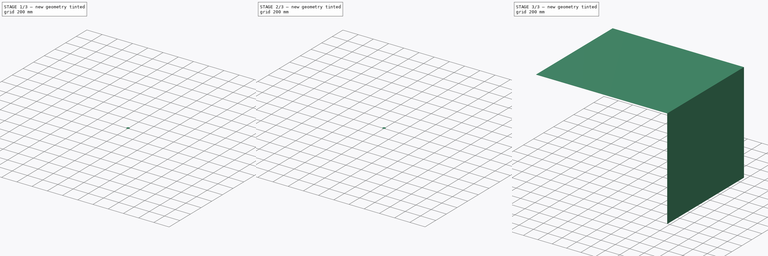
[diagram: build sequence overview — one tinted view per stage of 3, left to right]
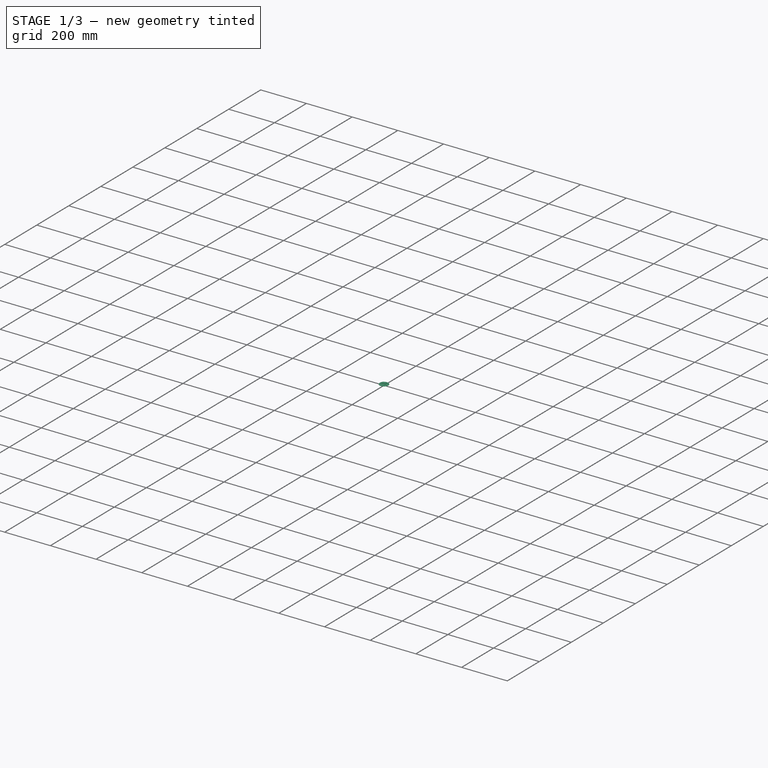
[diagram: stage 1 of 3 — iso view after this stage's code; geometry added in this stage tinted green]
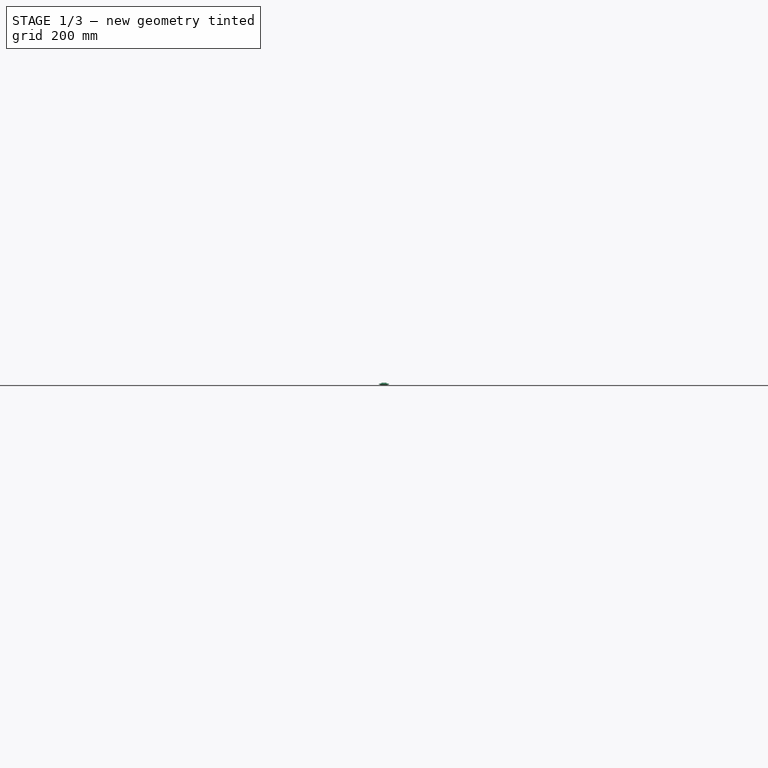
[diagram: stage 1 of 3 — front view after this stage's code; geometry added in this stage tinted green]
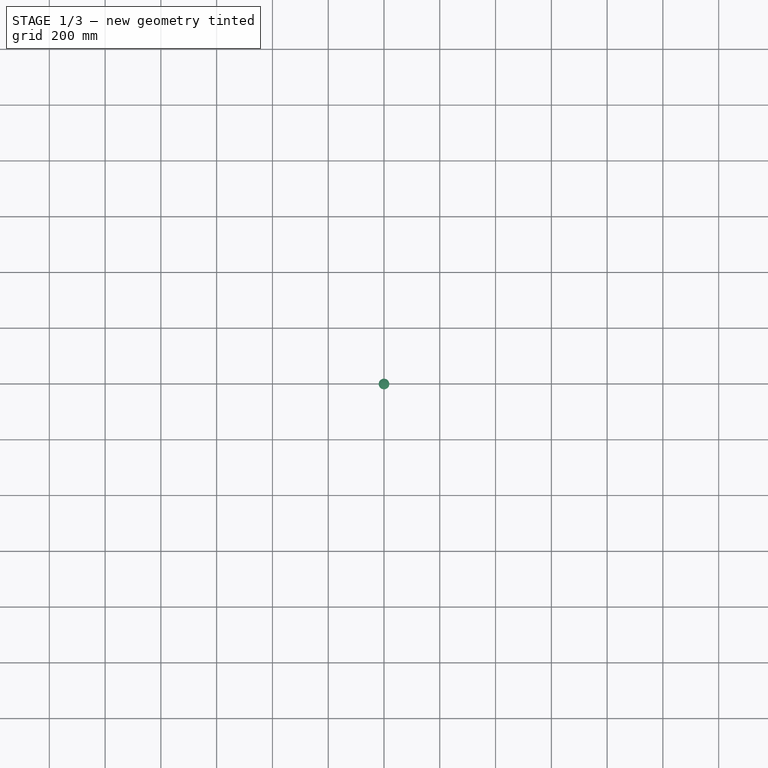
[diagram: stage 1 of 3 — top view after this stage's code; geometry added in this stage tinted green]
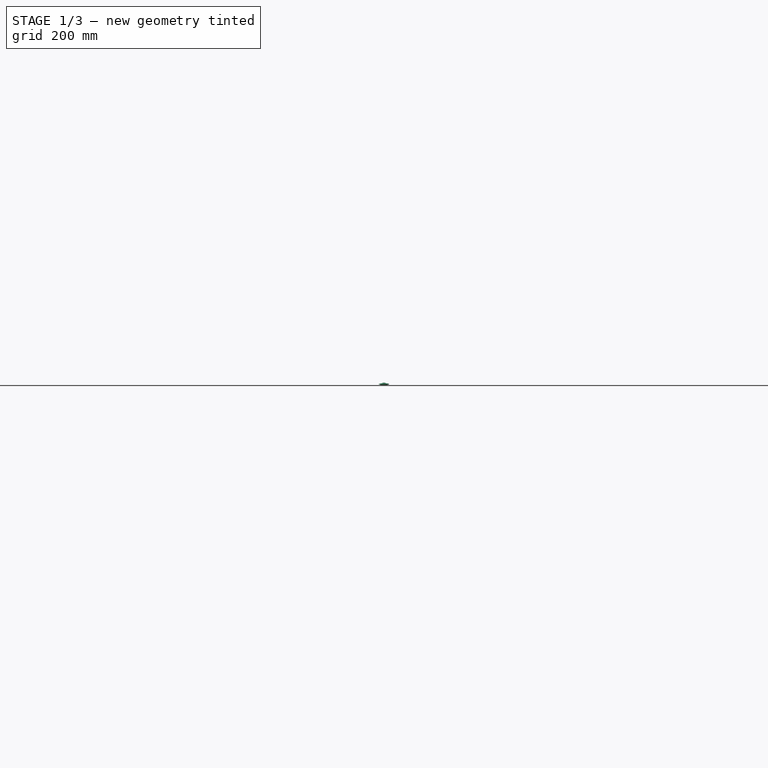
[diagram: stage 1 of 3 — right view after this stage's code; geometry added in this stage tinted green]
FCSTD DOCUMENT  (FreeCAD 1.0R39109 (Git))
Label: ClockRaytrace
License: All rights reserved
LicenseURL: https://en.wikipedia.org/wiki/All_rights_reserved
objects: Part::FeaturePython×11, Sketcher::SketchObject×5, PartDesign::Body×4, PartDesign::Pad×4, App::Link×2, App::DocumentObjectGroup×2, PartDesign::Revolution×1, PartDesign::ShapeBinder×1, Spreadsheet::Sheet×1, App::Part×1
note: 41 computed .brp shape members not serialized (recipe doc carries the construction recipe); baked Part::Feature solids carry a one-line shape summary decoded from their .brp

FEATURE [Sketcher::SketchObject] Sketch001
  ArcFitTolerance = 1e-06
  AttachmentSupport = -> [XZ_Plane003]
  FullyConstrained = true
  MakeInternals = false
  MapMode = 5
  Placement = pos=(0,0,0) rot=(1,0,0;1.5708rad)
  sketch-geometry (7):
    g0: LineSegment StartX=0 StartY=3.99545 StartZ=0 EndX=0 EndY=-3.99545 EndZ=0
    g1: LineSegment [constr] StartX=0 StartY=0 StartZ=0 EndX=19 EndY=0 EndZ=0
    g2: LineSegment StartX=19 StartY=0.4 StartZ=0 EndX=19 EndY=-0.4 EndZ=0
    g3: Circle [constr] CenterX=0 CenterY=-48.0045 CenterZ=0 NormalX=0 NormalY=0 NormalZ=1 AngleXU=0 Radius=52
    g4: ArcOfCircle CenterX=1.31e-14 CenterY=-48.0045 CenterZ=0 NormalX=0 NormalY=0 NormalZ=1 AngleXU=0 Radius=52 StartAngle=1.19675 EndAngle=1.5708
    g5: Circle [constr] CenterX=0 CenterY=48.0045 CenterZ=0 NormalX=0 NormalY=0 NormalZ=1 AngleXU=0 Radius=52
    g6: ArcOfCircle CenterX=4.1e-15 CenterY=48.0045 CenterZ=0 NormalX=0 NormalY=0 NormalZ=1 AngleXU=0 Radius=52 StartAngle=4.71239 EndAngle=5.08643
  constraints (21):
    c: Vertical(g0)
    c: Symmetric(g0,g0,g-1)
    c: Coincident(g1,g-1)
    c: PointOnObject(g1,g-1)
    c: DistanceX(g1,g1) = 19
    c: Vertical(g2)
    c: Symmetric(g2,g2,g1)
    c: Radius(g3) = 52
    c: Vertical(g3,g0)
    c: PointOnObject(g2,g3)
    c: PointOnObject(g0,g3)
    c: Coincident(g4,g0)
    c: Coincident(g4,g2)
    c: Vertical(g5,g0)
    c: Equal(g5,g3)
    c: PointOnObject(g2,g5)
    c: Coincident(g6,g2)
    c: Coincident(g6,g0)
    c: Equal(g4,g3)
    c: Equal(g5,g6)
    c: DistanceY(g2,g2) = 0.8
FEATURE [PartDesign::Revolution] Revolution001
  Angle = 360
  Angle2 = 60
  Axis = (0,2e-16,1)
  Base = (0,0,0)
  Placement = pos=(0,0,0) rot=(1,0,0;1.5708rad)
  Profile = -> Sketch001
  ReferenceAxis = -> Sketch001 [V_Axis]
  Refine = true
  Reversed = true
  Suppressed = false
  Type = 0
FEATURE [PartDesign::Body] Body001  label="38mm50FLLens"
  AllowCompound = false
  Group = -> [Sketch001,Revolution001]
  Origin = -> Origin003
  Tip = -> Revolution001
FEATURE [Part::FeaturePython] Beam  # WARN: FeaturePython — macro-defined, semantics opaque (R4)
  BeamDistance = 0.1
  BeamNrColumns = 10
  BeamNrRows = 10
  ConeAngle = 90
  HideFirstPart = false
  MaxNrReflections = 200
  MaxRayLength = 1000000
  Order = 0
  Placement = pos=(1.855,-7.73,0) rot=(-1,0,0;0.05236rad)
  Power = true
  Spherical = true
  Wavelength = 580
  expr: .Placement.Base.x = Spreadsheet.Base_LED_Height / 2 + Spreadsheet.Base_LED_X_offset
  expr: .Placement.Base.y = -Spreadsheet.Base_LED_Width / 2
  expr: BeamNrColumns = Spreadsheet.Base_Source_Columns
  expr: BeamNrRows = Spreadsheet.Base_Source_Rows
  expr: ConeAngle = Spreadsheet.Base_SourceConeAngle
FEATURE [Part::FeaturePython] Beam001  # WARN: FeaturePython — macro-defined, semantics opaque (R4)
  BeamDistance = 0.1
  BeamNrColumns = 10
  BeamNrRows = 10
  ConeAngle = 90
  HideFirstPart = false
  MaxNrReflections = 200
  MaxRayLength = 1000000
  Order = 0
  Placement = pos=(-1.855,0,0) rot=(0,1,0;0rad)
  Power = true
  Spherical = true
  Wavelength = 580
  expr: .Placement.Base.x = -Spreadsheet.Base_LED_Height / 2 + Spreadsheet.Base_LED_X_offset
  expr: BeamNrColumns = Spreadsheet.Base_Source_Columns
  expr: BeamNrRows = Spreadsheet.Base_Source_Rows
  expr: ConeAngle = Spreadsheet.Base_SourceConeAngle
FEATURE [Part::FeaturePython] Beam002  # WARN: FeaturePython — macro-defined, semantics opaque (R4)
  BeamDistance = 1
  BeamNrColumns = 40
  BeamNrRows = 1
  ConeAngle = 360
  HideFirstPart = false
  MaxNrReflections = 200
  MaxRayLength = 1000000
  Order = 0
  Placement = pos=(20,0,0) rot=(0.57735,-0.57735,0.57735;2.0944rad)
  Power = true
  Spherical = false
  Wavelength = 580
FEATURE [Part::FeaturePython] Beam003  # WARN: FeaturePython — macro-defined, semantics opaque (R4)
  BeamDistance = 0.1
  BeamNrColumns = 10
  BeamNrRows = 10
  ConeAngle = 90
  HideFirstPart = false
  MaxNrReflections = 200
  MaxRayLength = 1000000
  Order = 0
  Placement = pos=(1.855,7.73,0) rot=(1,0,0;0.069813rad)
  Power = true
  Spherical = true
  Wavelength = 580
  expr: .Placement.Base.x = Spreadsheet.Base_LED_Height / 2 + Spreadsheet.Base_LED_X_offset
  expr: .Placement.Base.y = Spreadsheet.Base_LED_Width / 2
  expr: BeamNrColumns = Spreadsheet.Base_Source_Columns
  expr: BeamNrRows = Spreadsheet.Base_Source_Rows
  expr: ConeAngle = Spreadsheet.Base_SourceConeAngle
FEATURE [PartDesign::ShapeBinder] CopyPad004
  TraceSupport = false
FEATURE [Sketcher::SketchObject] Sketch
  ArcFitTolerance = 1e-06
  AttachmentSupport = -> [CopyPad004]
  FullyConstrained = true
  MakeInternals = false
  MapMode = 5
  Placement = pos=(0,0,0) rot=(1,0,0;3.14159rad)
  sketch-geometry (5):
    g0: LineSegment StartX=8.89 StartY=-5.08 StartZ=0 EndX=8.89 EndY=5.08 EndZ=0
    g1: LineSegment StartX=8.89 StartY=5.08 StartZ=0 EndX=-8.89 EndY=5.08 EndZ=0
    g2: LineSegment StartX=-8.89 StartY=5.08 StartZ=0 EndX=-8.89 EndY=-5.08 EndZ=0
    g3: LineSegment StartX=-8.89 StartY=-5.08 StartZ=0 EndX=8.89 EndY=-5.08 EndZ=0
    g4: GeomPoint [constr] X=0 Y=0 Z=0
  constraints (12):
    c: Coincident(g0,g1)
    c: Coincident(g1,g2)
    c: Coincident(g2,g3)
    c: Coincident(g3,g0)
    c: Vertical(g0)
    c: Vertical(g2)
    c: Horizontal(g1)
    c: Horizontal(g3)
    c: Symmetric(g2,g0,g4)
    c: Coincident(g4,g-1)
    c: DistanceY(g0,g0) = 10.16
    c: DistanceX(g1,g1) = 17.78
FEATURE [PartDesign::Pad] Pad
  Direction = (0,0,-1)
  Length = 5.08
  Length2 = 10
  Profile = -> Sketch
  ReferenceAxis = -> Sketch [N_Axis]
  Refine = true
  Reversed = true
  Suppressed = false
  Type = 0
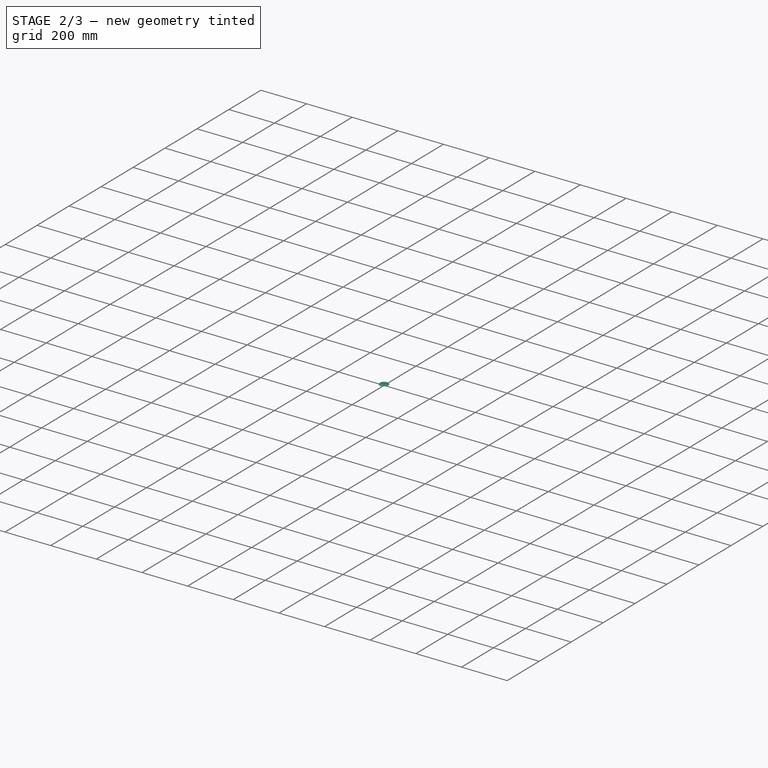
[diagram: stage 2 of 3 — iso view after this stage's code; geometry added in this stage tinted green]
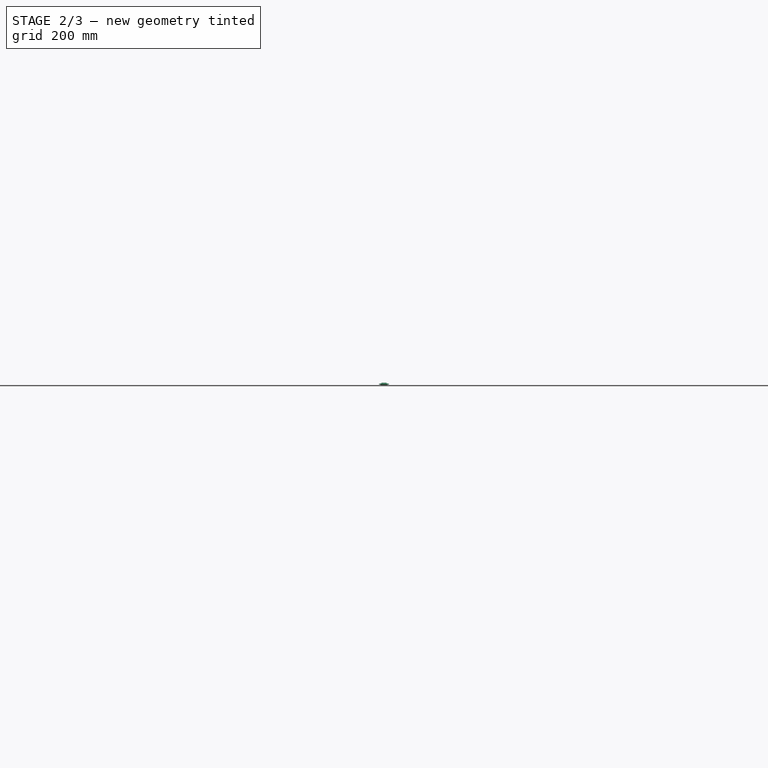
[diagram: stage 2 of 3 — front view after this stage's code; geometry added in this stage tinted green]
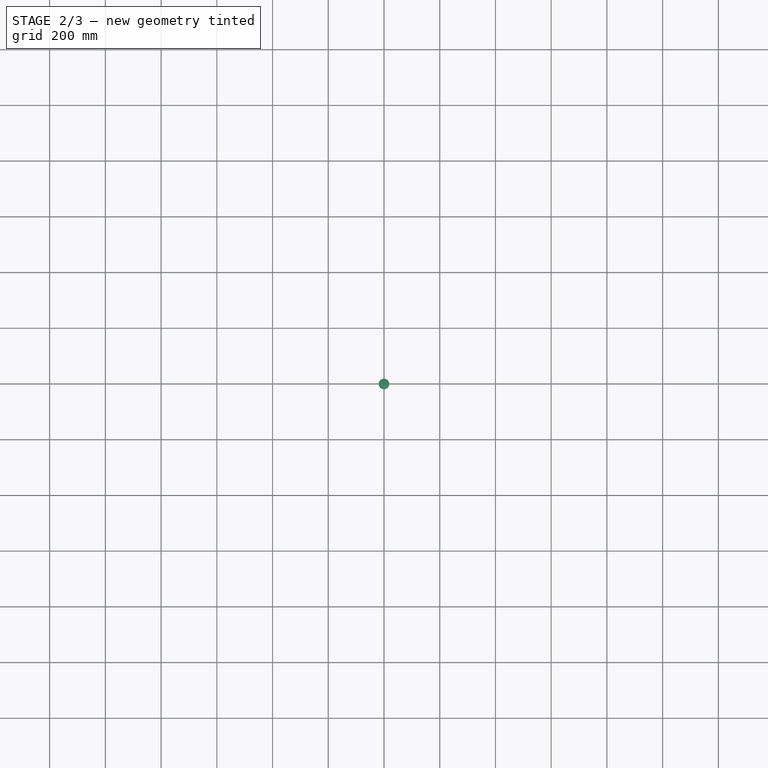
[diagram: stage 2 of 3 — top view after this stage's code; geometry added in this stage tinted green]
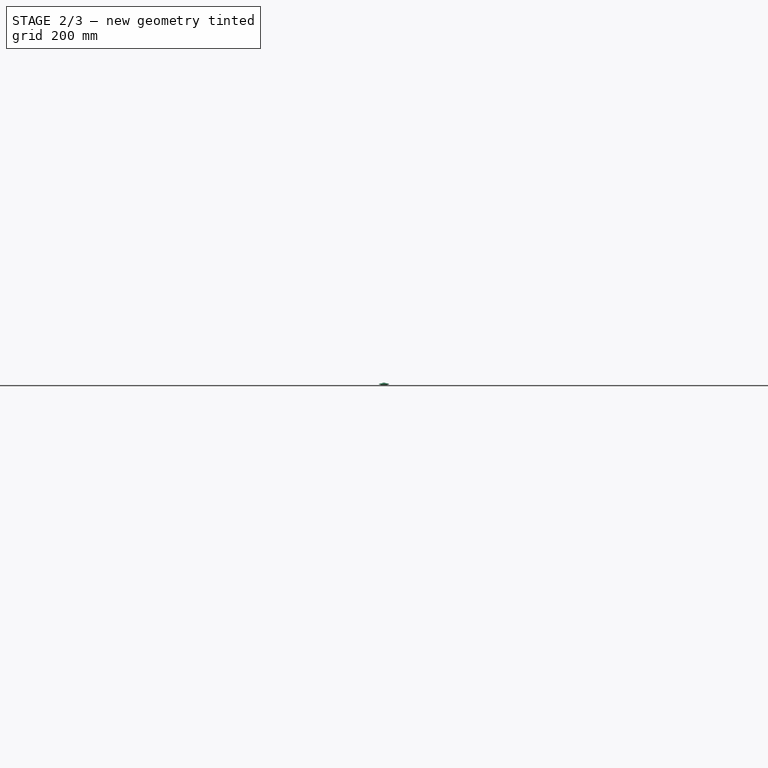
[diagram: stage 2 of 3 — right view after this stage's code; geometry added in this stage tinted green]
FEATURE [PartDesign::Body] Body011  label="Wall and Ceiling"
  AllowCompound = false
  Group = -> [Sketch012,Pad007]
  Origin = -> Origin020
  Tip = -> Pad007
  expr: .Placement.Rotation.Pitch = Spreadsheet.Base_DeviceTilt
FEATURE [Part::FeaturePython] Absorber  # WARN: FeaturePython — macro-defined, semantics opaque (R4)
  Base = -> [Body011]
  OpticalType = 1
  Transparency = 0
  collectStatistics = false
FEATURE [Sketcher::SketchObject] Sketch013
  ArcFitTolerance = 1e-06
  AttachmentSupport = -> [CopyPad004]
  FullyConstrained = true
  MakeInternals = false
  MapMode = 5
  Placement = pos=(0,0,0) rot=(1,0,0;3.14159rad)
  sketch-geometry (9):
    g0: LineSegment [constr] StartX=6.35 StartY=-3.81 StartZ=0 EndX=6.35 EndY=3.81 EndZ=0
    g1: LineSegment [constr] StartX=6.35 StartY=3.81 StartZ=0 EndX=-6.35 EndY=3.81 EndZ=0
    g2: LineSegment [constr] StartX=-6.35 StartY=3.81 StartZ=0 EndX=-6.35 EndY=-3.81 EndZ=0
    g3: LineSegment [constr] StartX=-6.35 StartY=-3.81 StartZ=0 EndX=6.35 EndY=-3.81 EndZ=0
    g4: GeomPoint [constr] X=0 Y=0 Z=0
    g5: Circle CenterX=-6.35 CenterY=-3.81 CenterZ=0 NormalX=0 NormalY=0 NormalZ=1 AngleXU=0 Radius=0.3175
    g6: Circle CenterX=6.35 CenterY=-3.81 CenterZ=0 NormalX=0 NormalY=0 NormalZ=1 AngleXU=0 Radius=0.3175
    g7: Circle CenterX=6.35 CenterY=3.81 CenterZ=0 NormalX=0 NormalY=0 NormalZ=1 AngleXU=0 Radius=0.3175
    g8: Circle CenterX=-6.35 CenterY=3.81 CenterZ=0 NormalX=0 NormalY=0 NormalZ=1 AngleXU=0 Radius=0.3175
  constraints (20):
    c: Coincident(g0,g1)
    c: Coincident(g1,g2)
    c: Coincident(g2,g3)
    c: Coincident(g3,g0)
    c: Vertical(g0)
    c: Vertical(g2)
    c: Horizontal(g1)
    c: Horizontal(g3)
    c: Symmetric(g2,g0,g4)
    c: Coincident(g4,g-1)
    c: DistanceX(g1,g1) = 12.7
    c: DistanceY(g2,g2) = 7.62
    c: Coincident(g5,g2)
    c: Coincident(g6,g0)
    c: Coincident(g7,g0)
    c: Coincident(g8,g1)
    c: Equal(g5,g8)
    c: Equal(g7,g8)
    c: Equal(g6,g8)
    c: Diameter(g8) = 0.635
FEATURE [PartDesign::Pad] Pad008
  BaseFeature = -> Pad
  Direction = (0,0,-1)
  Length = 4.318
  Length2 = 10
  Profile = -> Sketch013
  ReferenceAxis = -> Sketch013 [N_Axis]
  Refine = true
  Suppressed = false
  Type = 0
FEATURE [PartDesign::Body] Body
  AllowCompound = false
  Group = -> [CopyPad004,Sketch,Pad,Sketch013,Pad008]
  Origin = -> Origin
  Tip = -> Pad008
FEATURE [App::Part] Part006  label="LED"
  Group = -> [Body]
  Origin = -> Origin013
  Placement = pos=(0,0,-5.08) rot=(0,0,1;1.5708rad)
  expr: .Placement.Base.x = Spreadsheet.Base_LED_X_offset
  expr: .Placement.Base.z = -Spreadsheet.Base_LED_Package_Height
  expr: .Placement.Rotation.Yaw = Spreadsheet.Base_LED_yaw_angle
FEATURE [App::Link] Link  label="LED001"
  LinkPlacement = pos=(10.16,0,-5.08) rot=(0,0,1;1.5708rad)
  LinkedObject = -> Part006
  Placement = pos=(10.16,0,-5.08) rot=(0,0,1;1.5708rad)
  expr: .Placement.Base.x = Spreadsheet.Base_LED_X_offset + 400 thou
FEATURE [Part::FeaturePython] Beam007  # WARN: FeaturePython — macro-defined, semantics opaque (R4)
  BeamDistance = 0.1
  BeamNrColumns = 10
  BeamNrRows = 10
  ConeAngle = 90
  HideFirstPart = false
  MaxNrReflections = 200
  MaxRayLength = 1000000
  Order = 0
  Placement = pos=(12.015,-7.62,0) rot=(0,0,1;0rad)
  Power = true
  Spherical = true
  Wavelength = 580
  expr: .Placement.Base.x = Spreadsheet.Base_LED_Height / 2 + Spreadsheet.Base_LED_X_offset + 400 thou
  expr: BeamNrColumns = Spreadsheet.Base_Source_Columns
  expr: BeamNrRows = Spreadsheet.Base_Source_Rows
  expr: ConeAngle = Spreadsheet.Base_SourceConeAngle
FEATURE [App::DocumentObjectGroup] Group001  label="LED2"
  Group = -> [Beam007]
FEATURE [App::DocumentObjectGroup] Group  label="sources"
  Group = -> [Beam,Beam001,Beam003,Beam004,Beam005,Beam006,Group001]
FEATURE [App::Link] Link001  label="38mm50FLLens001"
  LinkPlacement = pos=(-10,0,51) rot=(0,0,1;0rad)
  LinkedObject = -> Body001
  Placement = pos=(-10,0,51) rot=(0,0,1;0rad)
  expr: .Placement.Base.x = -Spreadsheet.Base_Lens_X_offset
  expr: .Placement.Base.z = Spreadsheet.Base_LensToLED
FEATURE [Part::FeaturePython] Lens  # WARN: FeaturePython — macro-defined, semantics opaque (R4)
  Base = -> [Link001]
  Material = 3
  OpticalType = 0
  RefractionIndex = 1.45873
  Sellmeier = [0.696166,0.407943,0.897479,4679.15,13512.1,97934000]
  Transparency = 100
  collectStatistics = false
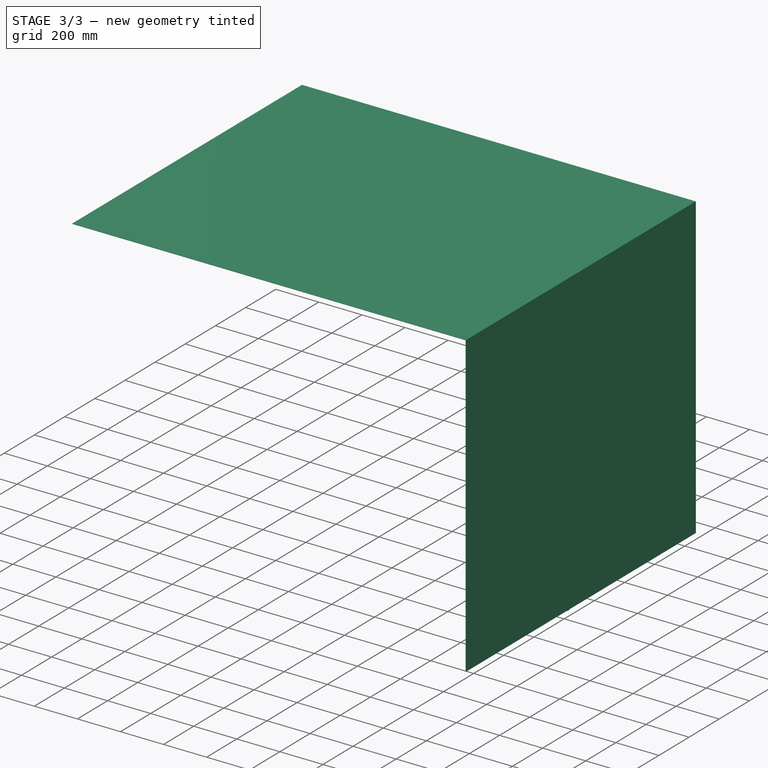
[diagram: stage 3 of 3 — iso view after this stage's code; geometry added in this stage tinted green]
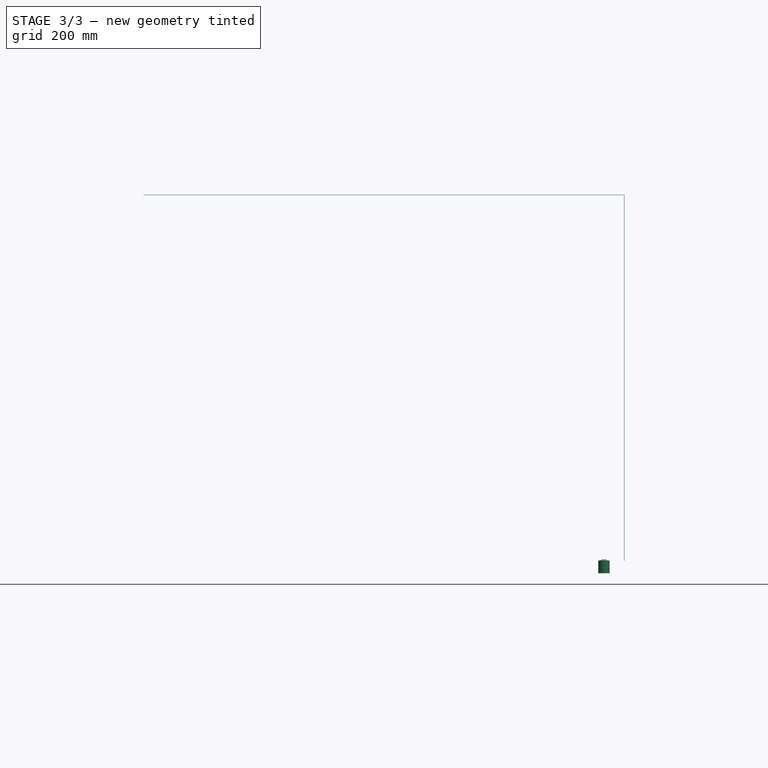
[diagram: stage 3 of 3 — front view after this stage's code; geometry added in this stage tinted green]
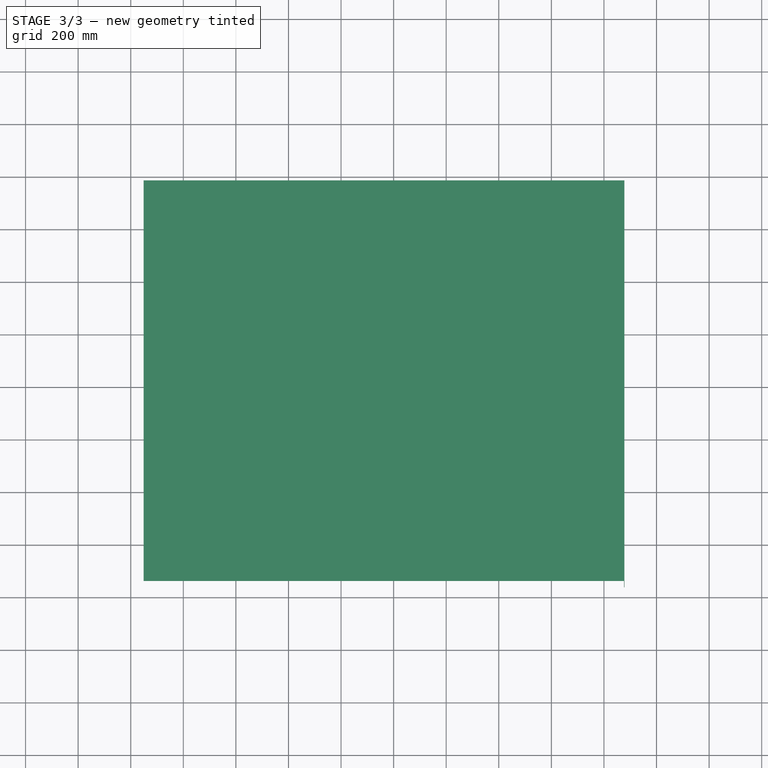
[diagram: stage 3 of 3 — top view after this stage's code; geometry added in this stage tinted green]
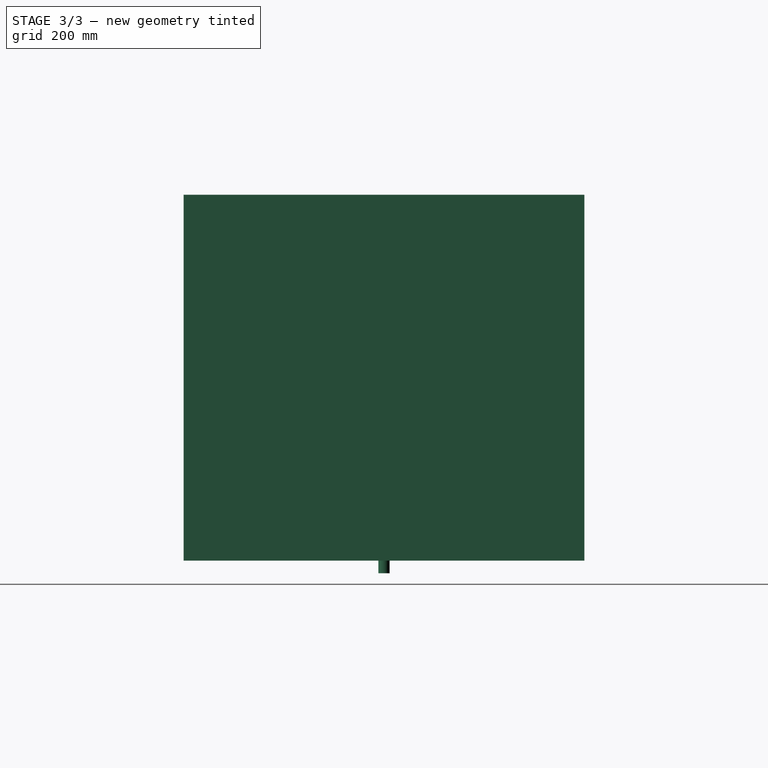
[diagram: stage 3 of 3 — right view after this stage's code; geometry added in this stage tinted green]
FEATURE [Sketcher::SketchObject] Sketch011
  ArcFitTolerance = 1e-06
  AttachmentSupport = -> [XY_Plane019]
  FullyConstrained = false
  MakeInternals = false
  MapMode = 5
  sketch-geometry (3):
    g0: Circle CenterX=0 CenterY=0 CenterZ=0 NormalX=0 NormalY=0 NormalZ=1 AngleXU=0 Radius=20
    g1: Circle CenterX=0 CenterY=0 CenterZ=0 NormalX=0 NormalY=0 NormalZ=1 AngleXU=0 Radius=21.5748
    g2: LineSegment [constr] StartX=0.010426 StartY=20 StartZ=0 EndX=0.010426 EndY=21.5748 EndZ=0
  constraints (7):
    c: Coincident(g0,g-1)
    c: Coincident(g1,g0)
    c: Diameter(g0) = 40
    c: PointOnObject(g2,g0)
    c: PointOnObject(g2,g1)
    c: Vertical(g2)
    c: DistanceY(g2,g2) = 1.5748
FEATURE [PartDesign::Pad] Pad006
  Direction = (0,0,1)
  Length = 48
  Length2 = 10
  Profile = -> Sketch011
  ReferenceAxis = -> Sketch011 [N_Axis]
  Refine = true
  Reversed = true
  Suppressed = false
  Type = 0
  expr: Length = Spreadsheet.Base_LensToLED - 3 mm
FEATURE [PartDesign::Body] Body010  label="baffle"
  AllowCompound = false
  Group = -> [Sketch011,Pad006]
  Origin = -> Origin019
  Placement = pos=(-7.46,0,48) rot=(0,-1,0;0.314159rad)
  Tip = -> Pad006
  expr: .Placement.Base.x = 2.54 mm - Spreadsheet.Base_Lens_X_offset
  expr: .Placement.Base.z = Spreadsheet.Base_LensToLED - 3 mm
FEATURE [Part::FeaturePython] Absorber001  # WARN: FeaturePython — macro-defined, semantics opaque (R4)
  Base = -> [Body010]
  OpticalType = 1
  Transparency = 0
  collectStatistics = false
FEATURE [Spreadsheet::Sheet] Spreadsheet
  Base_Ceiling_Target_Height = 101.6
  Base_Ceiling_Target_Width = 254
  Base_DeviceTilt = 0
  Base_LED_Height = 3.71
  Base_LED_Package_Height = 5.08
  Base_LED_Width = 15.46
  Base_LED_X_offset = 0
  Base_LED_Y_offset = 0
  Base_LED_yaw_angle = 90
  Base_LEDtoCeiling = 1397
  Base_LensToLED = 51
  Base_Lens_X_offset = 10
  Base_SourceConeAngle = 90
  Base_Source_Columns = 10
  Base_Source_Rows = 10
  Base_XOffset_LED_to_Ceiling = -248.158
FEATURE [Part::FeaturePython] Beam004  # WARN: FeaturePython — macro-defined, semantics opaque (R4)
  BeamDistance = 0.1
  BeamNrColumns = 10
  BeamNrRows = 10
  ConeAngle = 90
  HideFirstPart = false
  MaxNrReflections = 200
  MaxRayLength = 1000000
  Order = 0
  Placement = pos=(-1.855,-7.73,0) rot=(-1,0,0;0.05236rad)
  Power = true
  Spherical = true
  Wavelength = 580
  expr: .Placement.Base.x = -Spreadsheet.Base_LED_Height / 2 + Spreadsheet.Base_LED_X_offset
  expr: .Placement.Base.y = -Spreadsheet.Base_LED_Width / 2
  expr: BeamNrColumns = Spreadsheet.Base_Source_Columns
  expr: BeamNrRows = Spreadsheet.Base_Source_Rows
  expr: ConeAngle = Spreadsheet.Base_SourceConeAngle
FEATURE [Part::FeaturePython] Beam005  # WARN: FeaturePython — macro-defined, semantics opaque (R4)
  BeamDistance = 0.1
  BeamNrColumns = 10
  BeamNrRows = 10
  ConeAngle = 90
  HideFirstPart = false
  MaxNrReflections = 200
  MaxRayLength = 1000000
  Order = 0
  Placement = pos=(1.855,0,0) rot=(-1,0,0;0.05236rad)
  Power = true
  Spherical = true
  Wavelength = 580
  expr: .Placement.Base.x = Spreadsheet.Base_LED_Height / 2 + <<Spreadsheet>>.Base_LED_X_offset
  expr: .Placement.Base.y = 0 in
  expr: BeamNrColumns = Spreadsheet.Base_Source_Columns
  expr: BeamNrRows = Spreadsheet.Base_Source_Rows
  expr: ConeAngle = Spreadsheet.Base_SourceConeAngle
FEATURE [Part::FeaturePython] Beam006  # WARN: FeaturePython — macro-defined, semantics opaque (R4)
  BeamDistance = 0.1
  BeamNrColumns = 10
  BeamNrRows = 10
  ConeAngle = 90
  HideFirstPart = false
  MaxNrReflections = 200
  MaxRayLength = 1000000
  Order = 0
  Placement = pos=(-1.855,7.73,0) rot=(1,0,0;0.069813rad)
  Power = true
  Spherical = true
  Wavelength = 580
  expr: .Placement.Base.x = -Spreadsheet.Base_LED_Height / 2 + Spreadsheet.Base_LED_X_offset
  expr: .Placement.Base.y = Spreadsheet.Base_LED_Width / 2
  expr: BeamNrColumns = Spreadsheet.Base_Source_Columns
  expr: BeamNrRows = Spreadsheet.Base_Source_Rows
  expr: ConeAngle = Spreadsheet.Base_SourceConeAngle
FEATURE [Sketcher::SketchObject] Sketch012
  ArcFitTolerance = 1e-06
  AttachmentSupport = -> [XZ_Plane022]
  FullyConstrained = true
  MakeInternals = false
  MapMode = 5
  Placement = pos=(0,0,0) rot=(0,0.707107,0.707107;3.14159rad)
  sketch-geometry (6):
    g0: LineSegment StartX=-76.2 StartY=0 StartZ=0 EndX=-76.2 EndY=1390.42 EndZ=0
    g1: LineSegment StartX=-76.2 StartY=1390.42 StartZ=0 EndX=1751.03 EndY=1390.42 EndZ=0
    g2: LineSegment StartX=1751.03 StartY=1390.42 StartZ=0 EndX=1751.03 EndY=1391.99 EndZ=0
    g3: LineSegment StartX=1751.03 StartY=1391.99 StartZ=0 EndX=-77.7748 EndY=1391.99 EndZ=0
    g4: LineSegment StartX=-77.7748 StartY=1391.99 StartZ=0 EndX=-77.7748 EndY=0 EndZ=0
    g5: LineSegment StartX=-77.7748 StartY=0 StartZ=0 EndX=-76.2 EndY=0 EndZ=0
  constraints (18):
    c: Vertical(g0)
    c: Horizontal(g1)
    c: Coincident(g2,g1)
    c: Vertical(g2)
    c: Horizontal(g3)
    c: PointOnObject(g4,g-1)
    c: Vertical(g4)
    c: Coincident(g5,g0)
    c: DistanceY(g2,g2) = 1.5748
    c: Equal(g5,g2)
    c: Coincident(g3,g2)
    c: Coincident(g3,g4)
    c: Coincident(g1,g0)
    c: Coincident(g5,g4)
    c: DistanceX(g0,g-1) = 76.2
    c: DistanceY(g4,g4) = 1391.99
    c: DistanceX(g3,g3) = 1828.8
    c: Horizontal(g0,g-1)
FEATURE [PartDesign::Pad] Pad007
  Direction = (0,1,-2e-16)
  Length = 1524
  Length2 = 10
  Midplane = true
  Placement = pos=(0,0,0) rot=(1,0,0;1.5708rad)
  Profile = -> Sketch012
  ReferenceAxis = -> Sketch012 [N_Axis]
  Refine = true
  Suppressed = false
  Type = 0
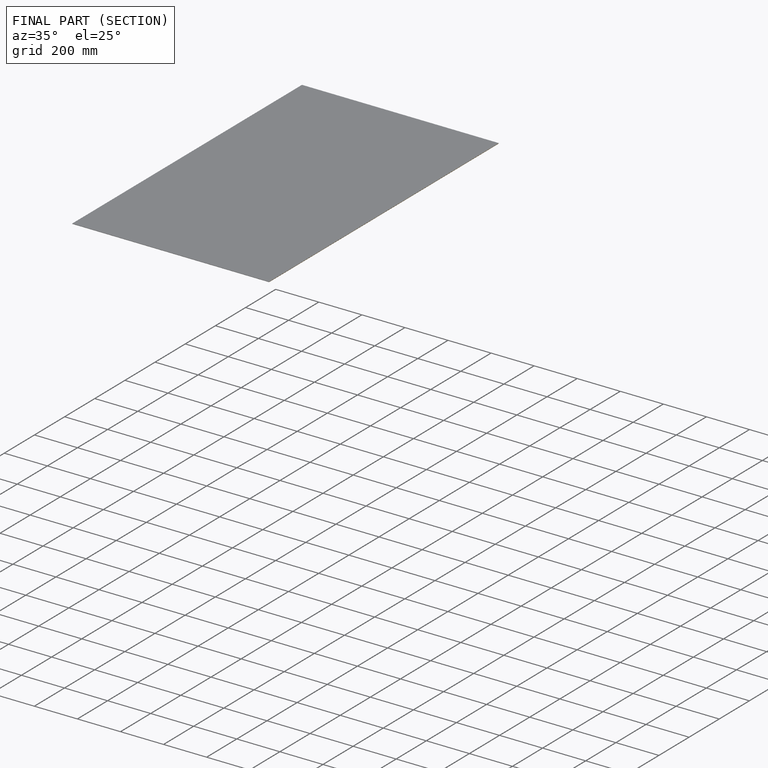
[diagram: finished part — half-section view (interior)]
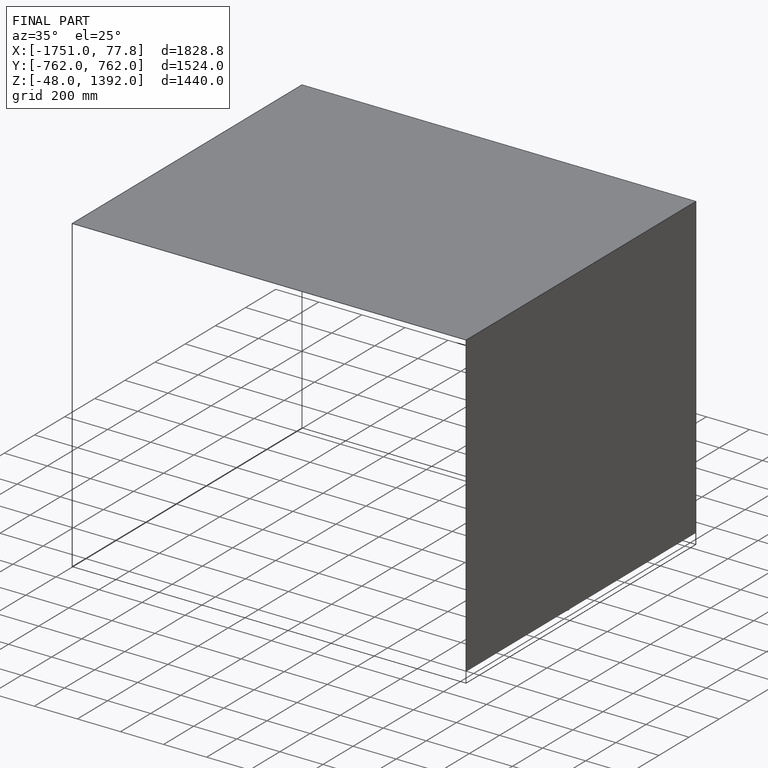
[diagram: finished part — iso view with bounding-box wireframe]
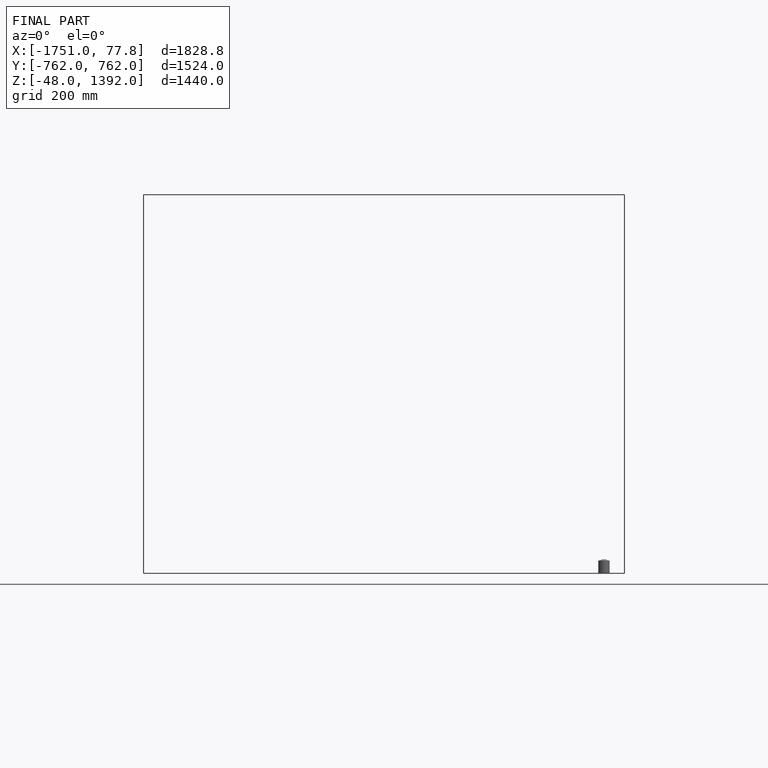
[diagram: finished part — front view with bounding-box wireframe]
